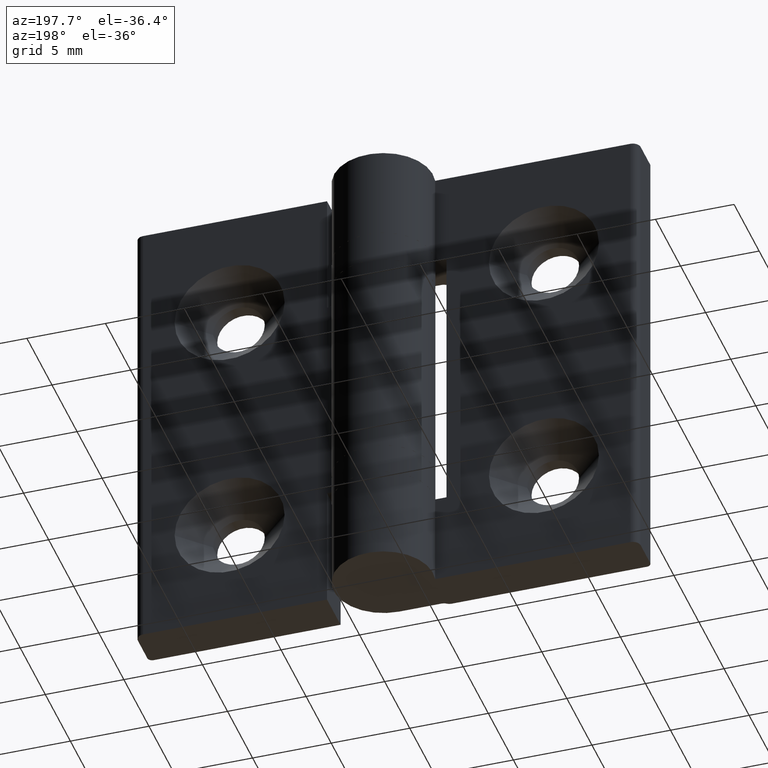
[diagram: clean part render]
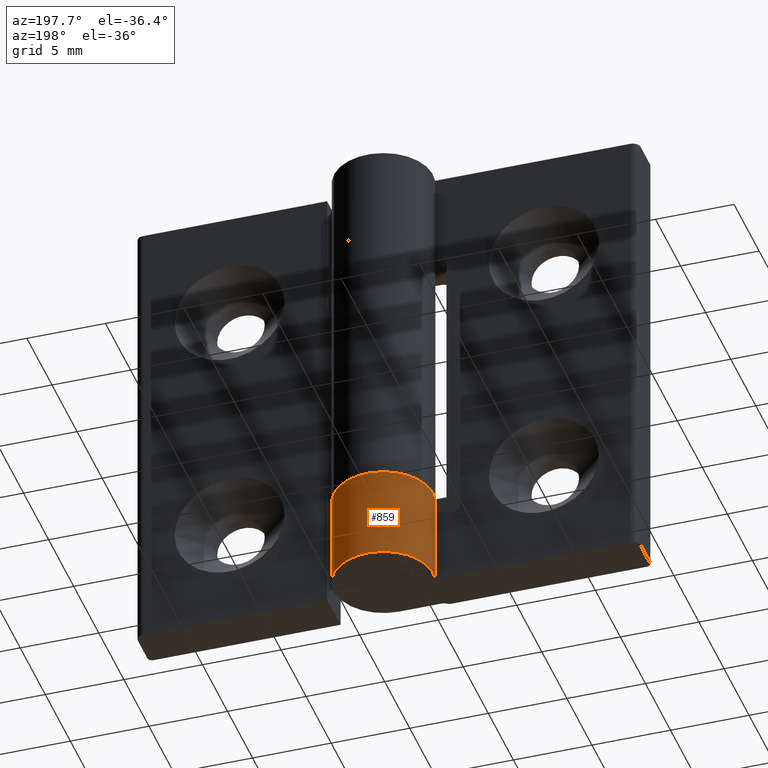
[diagram: same view with one face highlighted and labeled with its STEP entity id]
A machine part, auxiliary view. The second image highlights one B-rep face of the part: STEP entity #859.
In plain terms, the highlighted cylindrical surface (partial cylindrical patch) has radius 3.15 mm, axis along (0, 0, -1).
Its self-contained STEP definition (entity closure, byte-faithful):
#117=FACE_OUTER_BOUND('',#179,.T.);
#179=EDGE_LOOP('',(#668,#669,#670,#671));
#256=LINE('',#1357,#317);
#261=LINE('',#1394,#322);
#317=VECTOR('',#1064,6.);
#322=VECTOR('',#1109,6.);
#364=CIRCLE('',#911,3.15);
#375=CIRCLE('',#930,3.15);
#423=VERTEX_POINT('',#1329);
#424=VERTEX_POINT('',#1331);
#434=VERTEX_POINT('',#1355);
#441=VERTEX_POINT('',#1378);
#507=EDGE_CURVE('',#423,#424,#364,.T.);
#520=EDGE_CURVE('',#423,#434,#256,.T.);
#530=EDGE_CURVE('',#434,#441,#375,.T.);
#537=EDGE_CURVE('',#441,#424,#261,.T.);
#668=ORIENTED_EDGE('',*,*,#530,.T.);
#669=ORIENTED_EDGE('',*,*,#537,.T.);
#670=ORIENTED_EDGE('',*,*,#507,.F.);
#671=ORIENTED_EDGE('',*,*,#520,.T.);
#828=CYLINDRICAL_SURFACE('',#937,3.15);
#859=ADVANCED_FACE('',(#117),#828,.T.);
#911=AXIS2_PLACEMENT_3D('',#1332,#1042,#1043);
#930=AXIS2_PLACEMENT_3D('',#1380,#1092,#1093);
#937=AXIS2_PLACEMENT_3D('',#1393,#1107,#1108);
#1042=DIRECTION('center_axis',(0.,0.,-1.));
#1043=DIRECTION('ref_axis',(-1.,0.,0.));
#1064=DIRECTION('',(0.,0.,1.));
#1092=DIRECTION('center_axis',(0.,0.,-1.));
#1093=DIRECTION('ref_axis',(-1.,0.,0.));
#1107=DIRECTION('center_axis',(0.,0.,-1.));
#1108=DIRECTION('ref_axis',(-1.,0.,0.));
#1109=DIRECTION('',(0.,0.,-1.));
#1329=CARTESIAN_POINT('',(-3.08220700148449,2.7,-30.));
#1331=CARTESIAN_POINT('',(1.53080849893419E-16,0.200000000000001,-30.));
#1332=CARTESIAN_POINT('Origin',(0.,3.35,-30.));
#1355=CARTESIAN_POINT('',(-3.08220700148449,2.7,-24.));
#1357=CARTESIAN_POINT('',(-3.08220700148449,2.7,0.));
#1378=CARTESIAN_POINT('',(1.53080849893419E-16,0.200000000000001,-24.));
#1380=CARTESIAN_POINT('Origin',(0.,3.35,-24.));
#1393=CARTESIAN_POINT('Origin',(0.,3.35,0.));
#1394=CARTESIAN_POINT('',(1.53080849893419E-16,0.200000000000001,0.));